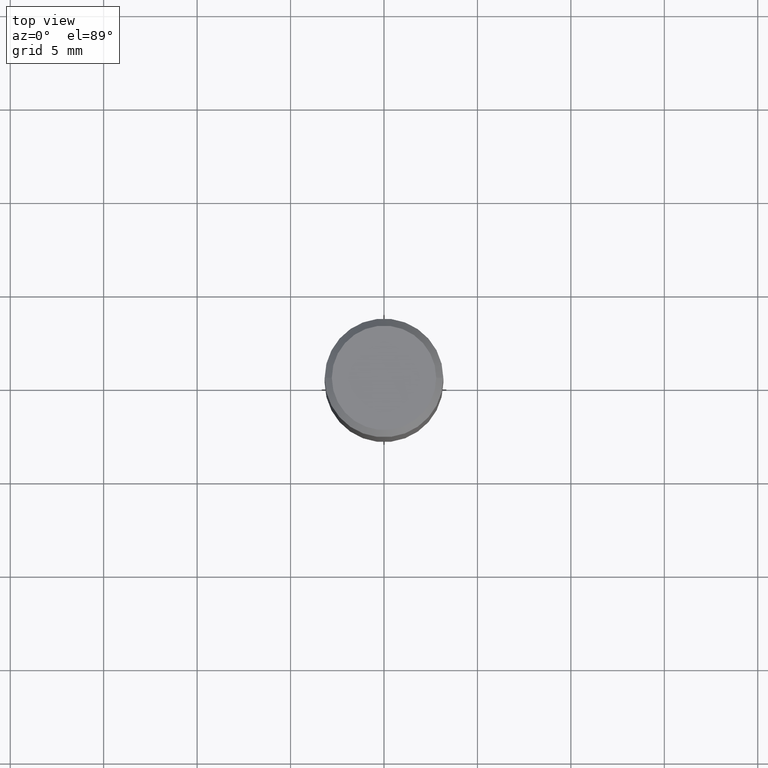
[diagram: clean part render]
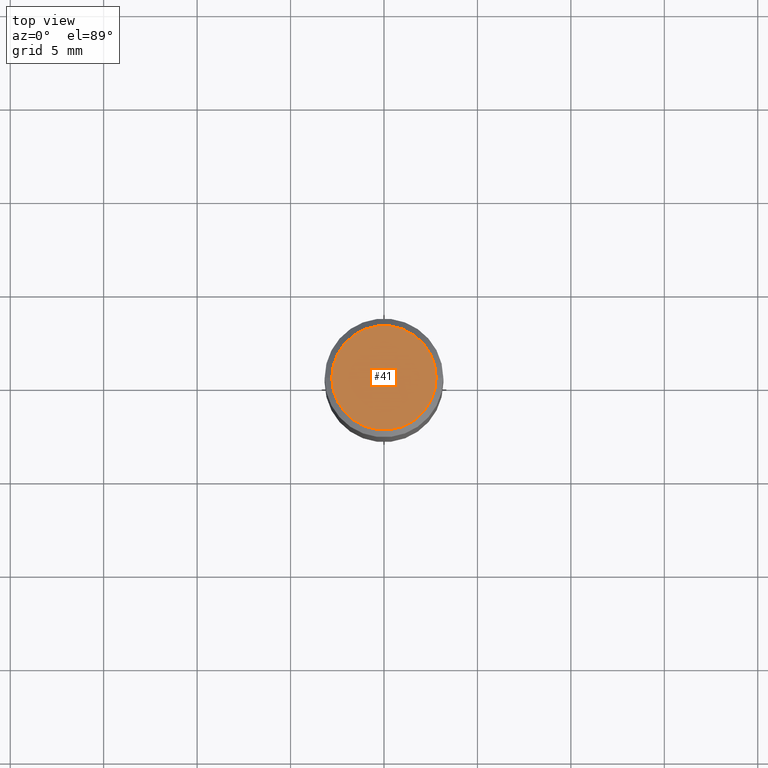
[diagram: same view with one face highlighted and labeled with its STEP entity id]
A machine part, top view. The second image highlights one B-rep face of the part: STEP entity #41.
In plain terms, the highlighted planar face has unit normal (0, -0, -1).
Its self-contained STEP definition (entity closure, byte-faithful):
#8 = PLANE ( 'NONE',  #272 ) ;
#13 = CARTESIAN_POINT ( 'NONE',  ( 7.681258945454893776E-16, 0.1100000000000000006, -3.567410525261111604E-16 ) ) ;
#41 = ADVANCED_FACE ( 'NONE', ( #201 ), #8, .F. ) ;
#51 = DIRECTION ( 'NONE',  ( -1.000000000000000000, 6.982962677686265922E-15, -4.876176775795935793E-29 ) ) ;
#81 = VERTEX_POINT ( 'NONE', #84 ) ;
#84 = CARTESIAN_POINT ( 'NONE',  ( -0.1100000000000000006, 7.943120045868128186E-16, 5.464378949326430820E-17 ) ) ;
#130 = CARTESIAN_POINT ( 'NONE',  ( 0.1100000000000000006, -8.322946247794783877E-16, 5.464378949327537075E-17 ) ) ;
#140 = CARTESIAN_POINT ( 'NONE',  ( -1.336296826575383585E-45, 1.907877712994245642E-31, 5.464378949326977476E-17 ) ) ;
#154 = ORIENTED_EDGE ( 'NONE', *, *, #198, .T. ) ;
#198 = EDGE_CURVE ( 'NONE', #429, #81, #203, .T. ) ;
#201 = FACE_OUTER_BOUND ( 'NONE', #388, .T. ) ;
#203 = CIRCLE ( 'NONE', #211, 0.1100000000000000006 ) ;
#211 = AXIS2_PLACEMENT_3D ( 'NONE', #140, #381, #460 ) ;
#222 = AXIS2_PLACEMENT_3D ( 'NONE', #304, #308, #373 ) ;
#272 = AXIS2_PLACEMENT_3D ( 'NONE', #13, #328, #51 ) ;
#304 = CARTESIAN_POINT ( 'NONE',  ( -1.336296826575383585E-45, 1.907877712994245642E-31, 5.464378949326977476E-17 ) ) ;
#308 = DIRECTION ( 'NONE',  ( -2.445468806185136597E-29, 3.491481338843145583E-15, 1.000000000000000000 ) ) ;
#328 = DIRECTION ( 'NONE',  ( 2.438088387897960049E-29, -3.491481338843145188E-15, -1.000000000000000000 ) ) ;
#332 = ORIENTED_EDGE ( 'NONE', *, *, #377, .T. ) ;
#373 = DIRECTION ( 'NONE',  ( 1.000000000000000000, -6.982962677686266711E-15, 4.873416144172425341E-29 ) ) ;
#377 = EDGE_CURVE ( 'NONE', #81, #429, #413, .T. ) ;
#381 = DIRECTION ( 'NONE',  ( -2.445468806185136597E-29, 3.491481338843145583E-15, 1.000000000000000000 ) ) ;
#388 = EDGE_LOOP ( 'NONE', ( #332, #154 ) ) ;
#413 = CIRCLE ( 'NONE', #222, 0.1100000000000000006 ) ;
#429 = VERTEX_POINT ( 'NONE', #130 ) ;
#460 = DIRECTION ( 'NONE',  ( 1.000000000000000000, -6.982962677686266711E-15, 4.873416144172425341E-29 ) ) ;